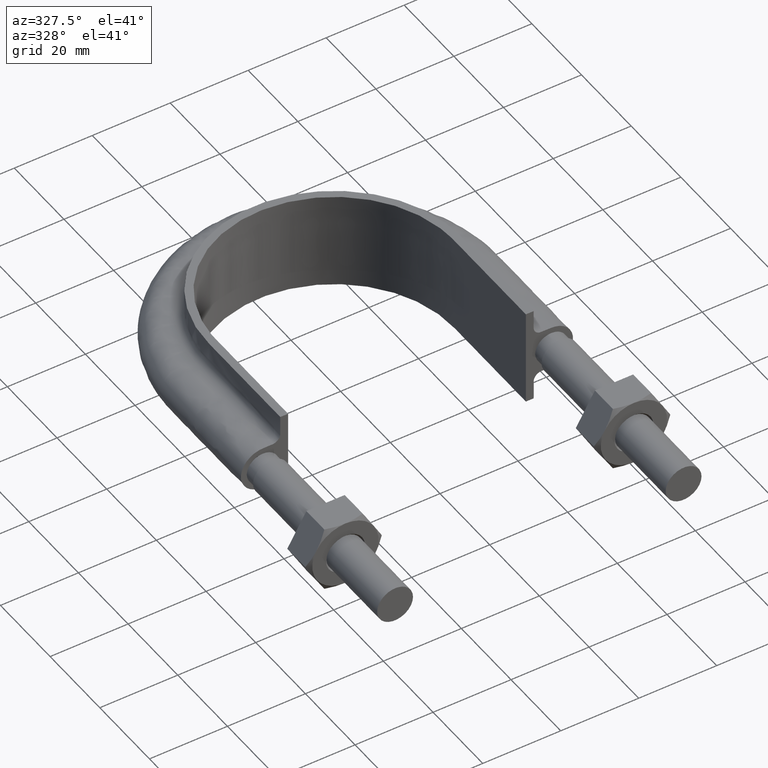
[diagram: clean part render]
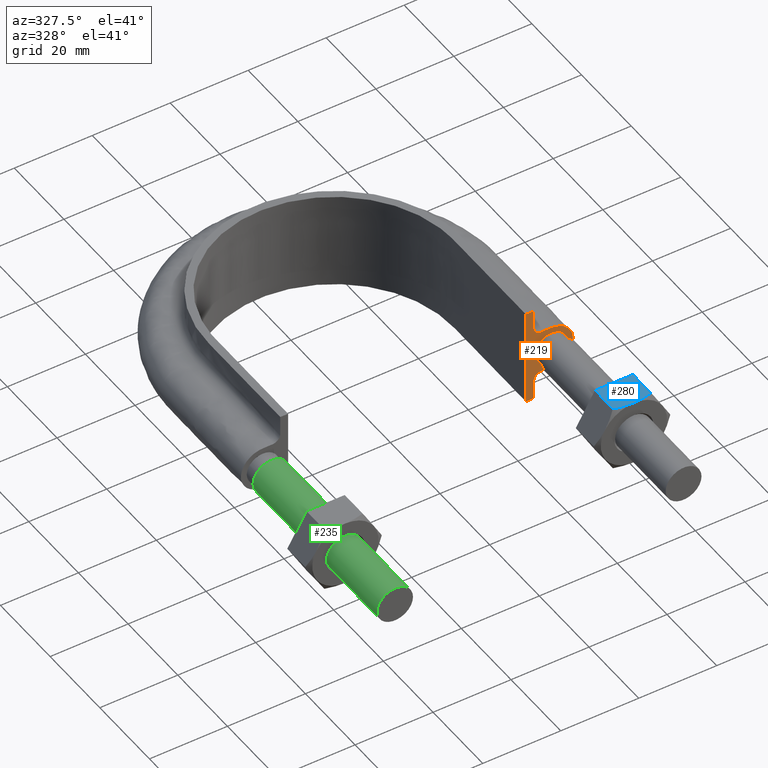
[diagram: same view with three faces highlighted in distinct colors, each labeled with its STEP entity id]
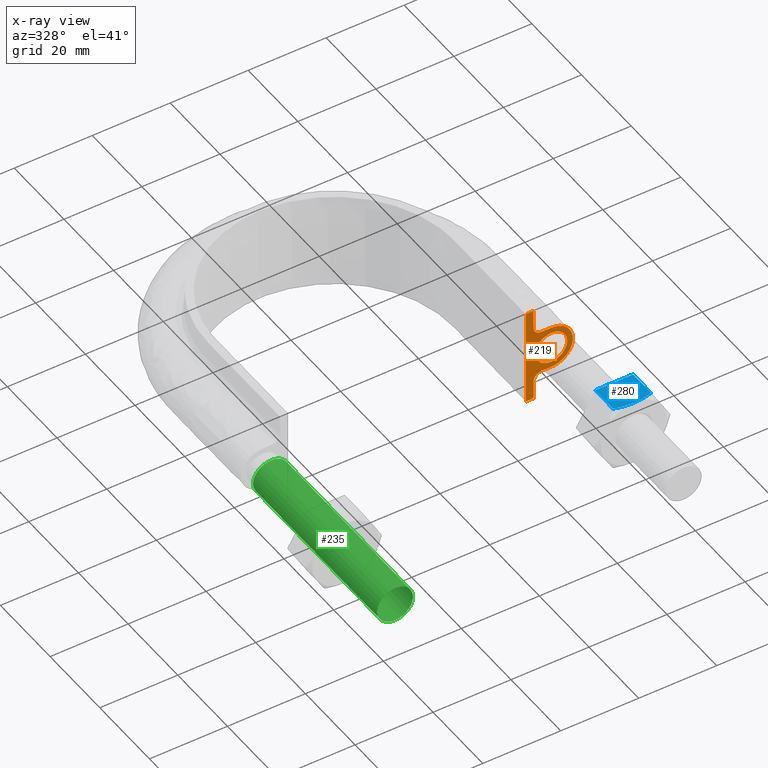
[diagram: x-ray of the same camera — body ghosted, the three highlighted faces saturated]
A machine part, auxiliary view with three faces highlighted in distinct colors.
The next image is the same camera in x-ray (body ghosted, the three faces saturated) — at least one of them is partly hidden behind the body in this view.
Their STEP definitions:

[orange] entity #219 — the highlighted planar face has unit normal (-0, -1, 0).
#219 = ADVANCED_FACE( '', ( #296, #297 ), #298, .T. );
#296 = FACE_BOUND( '', #468, .T. );
#297 = FACE_OUTER_BOUND( '', #469, .T. );
#298 = PLANE( '', #470 );
#468 = EDGE_LOOP( '', ( #1465 ) );
#469 = EDGE_LOOP( '', ( #1466, #1467, #1468, #1469 ) );
#470 = AXIS2_PLACEMENT_3D( '', #1470, #1471, #1472 );
#1465 = ORIENTED_EDGE( '', *, *, #2003, .F. );
#1466 = ORIENTED_EDGE( '', *, *, #2004, .F. );
#1467 = ORIENTED_EDGE( '', *, *, #2005, .T. );
#1468 = ORIENTED_EDGE( '', *, *, #2006, .T. );
#1469 = ORIENTED_EDGE( '', *, *, #2007, .T. );
#1470 = CARTESIAN_POINT( '', ( -45.0000000000000, 53.3000000000001, -12.5000000000000 ) );
#1471 = DIRECTION( '', ( -1.22460635382238E-016, -1.00000000000000, 0.000000000000000 ) );
#1472 = DIRECTION( '', ( -1.00000000000000, 1.22460635382238E-016, 0.000000000000000 ) );
#2003 = EDGE_CURVE( '', #2155, #2155, #2156, .T. );
#2004 = EDGE_CURVE( '', #2157, #2158, #2159, .T. );
#2005 = EDGE_CURVE( '', #2157, #2160, #2161, .T. );
#2006 = EDGE_CURVE( '', #2160, #2162, #2163, .T. );
#2007 = EDGE_CURVE( '', #2162, #2158, #2164, .T. );
#2155 = VERTEX_POINT( '', #2405 );
#2156 = B_SPLINE_CURVE_WITH_KNOTS( '', 3, ( #2406, #2407, #2408, #2409, #2410, #2411, #2412, #2413, #2414, #2415 ), .UNSPECIFIED., .T., .F., ( 4, 1, 1, 1, 1, 1, 1, 4 ), ( 0.000000000000000, 0.00365634574703304, 0.00731269149406608, 0.0109690372410991, 0.0146253829881322, 0.0182817287351652, 0.0219380744821982, 0.0255944202292313 ), .UNSPECIFIED. );
#2157 = VERTEX_POINT( '', #2416 );
#2158 = VERTEX_POINT( '', #2417 );
#2159 = LINE( '', #2418, #2419 );
#2160 = VERTEX_POINT( '', #2420 );
#2161 = LINE( '', #2421, #2422 );
#2162 = VERTEX_POINT( '', #2423 );
#2163 = LINE( '', #2424, #2425 );
#2164 = B_SPLINE_CURVE_WITH_KNOTS( '', 3, ( #2426, #2427, #2428, #2429, #2430, #2431, #2432, #2433, #2434, #2435, #2436, #2437, #2438, #2439, #2440, #2441, #2442, #2443, #2444, #2445, #2446, #2447, #2448, #2449, #2450, #2451, #2452, #2453, #2454, #2455, #2456 ), .UNSPECIFIED., .F., .F., ( 4, 3, 1, 1, 1, 3, 3, 1, 1, 1, 3, 3, 1, 1, 1, 3, 4 ), ( 0.000000000000000, 0.00240485792065913, 0.00480971584131826, 0.00721457376197739, 0.00961943168263653, 0.0120242896032957, 0.0144291475239548, 0.0168340054446139, 0.0192388633652731, 0.0216437212859322, 0.0240485792065913, 0.0264534371272505, 0.0288582950479096, 0.0312631529685687, 0.0336680108892278, 0.0360728688098870, 0.0384777267305461 ), .UNSPECIFIED. );
#2405 = CARTESIAN_POINT( '', ( 32.9000000000000, 53.3000000000001, 4.33680868994202E-016 ) );
#2406 = CARTESIAN_POINT( '', ( 32.9000000000000, 53.3000000000001, 3.25260651745651E-016 ) );
#2407 = CARTESIAN_POINT( '', ( 32.9000000000000, 53.3000000000001, -1.22184926194408 ) );
#2408 = CARTESIAN_POINT( '', ( 34.0768231851220, 53.3000000000001, -3.66554778583225 ) );
#2409 = CARTESIAN_POINT( '', ( 38.0432697263483, 53.3000000000001, -4.57086332538454 ) );
#2410 = CARTESIAN_POINT( '', ( 41.2241128848103, 53.3000000000001, -2.03422555230246 ) );
#2411 = CARTESIAN_POINT( '', ( 41.2241128848103, 53.3000000000001, 2.03422555230246 ) );
#2412 = CARTESIAN_POINT( '', ( 38.0432697263483, 53.3000000000001, 4.57086332538454 ) );
#2413 = CARTESIAN_POINT( '', ( 34.0768231851220, 53.3000000000001, 3.66554778583225 ) );
#2414 = CARTESIAN_POINT( '', ( 32.9000000000000, 53.3000000000001, 1.22184926194408 ) );
#2415 = CARTESIAN_POINT( '', ( 32.9000000000000, 53.3000000000001, 3.25260651745651E-016 ) );
#2416 = CARTESIAN_POINT( '', ( 30.5000000000000, 53.3000000000001, 12.5000000000000 ) );
#2417 = CARTESIAN_POINT( '', ( 32.5000000000000, 53.3000000000001, 12.5000000000000 ) );
#2418 = CARTESIAN_POINT( '', ( -45.0000000000000, 53.3000000000001, 12.5000000000000 ) );
#2419 = VECTOR( '', #3074, 1000.00000000000 );
#2420 = CARTESIAN_POINT( '', ( 30.5000000000000, 53.3000000000001, -12.5000000000000 ) );
#2421 = CARTESIAN_POINT( '', ( 30.5000000000000, 53.3000000000001, 12.5000100000910 ) );
#2422 = VECTOR( '', #3075, 1000.00000000000 );
#2423 = CARTESIAN_POINT( '', ( 32.5000000000000, 53.3000000000000, -12.5000000000000 ) );
#2424 = CARTESIAN_POINT( '', ( -45.0000000000000, 53.3000000000001, -12.5000000000000 ) );
#2425 = VECTOR( '', #3076, 1000.00000000000 );
#2426 = CARTESIAN_POINT( '', ( 32.5000000000000, 53.3000000000000, -12.5000000000000 ) );
#2427 = CARTESIAN_POINT( '', ( 32.5000000000000, 53.3000000000000, -10.8666666666667 ) );
#2428 = CARTESIAN_POINT( '', ( 32.5000000000000, 53.3000000000000, -9.23333333333333 ) );
#2429 = CARTESIAN_POINT( '', ( 32.5000000000000, 53.3000000000000, -7.60000000000000 ) );
#2430 = CARTESIAN_POINT( '', ( 32.5000000000000, 53.3000000000000, -7.33823584172334 ) );
#2431 = CARTESIAN_POINT( '', ( 32.6041362568359, 53.3000000000000, -6.81470752517001 ) );
#2432 = CARTESIAN_POINT( '', ( 33.0489687109389, 53.3000000000000, -6.14896871093888 ) );
#2433 = CARTESIAN_POINT( '', ( 33.7147075251700, 53.3000000000000, -5.70413625683591 ) );
#2434 = CARTESIAN_POINT( '', ( 34.2382358417234, 53.3000000000000, -5.60000000000000 ) );
#2435 = CARTESIAN_POINT( '', ( 34.5000000000000, 53.3000000000000, -5.60000000000000 ) );
#2436 = CARTESIAN_POINT( '', ( 35.3333333333334, 53.3000000000000, -5.60000000000000 ) );
#2437 = CARTESIAN_POINT( '', ( 36.1666666666667, 53.3000000000000, -5.60000000000000 ) );
#2438 = CARTESIAN_POINT( '', ( 37.0000000000000, 53.3000000000000, -5.60000000000000 ) );
#2439 = CARTESIAN_POINT( '', ( 38.4627416997970, 53.3000000000000, -5.60000000000000 ) );
#2440 = CARTESIAN_POINT( '', ( 41.3882250993909, 53.3000000000000, -4.38822509939086 ) );
#2441 = CARTESIAN_POINT( '', ( 43.2058874503046, 53.3000000000000, -1.07693261045861E-015 ) );
#2442 = CARTESIAN_POINT( '', ( 41.3882250993909, 53.3000000000000, 4.38822509939085 ) );
#2443 = CARTESIAN_POINT( '', ( 38.4627416997970, 53.3000000000000, 5.60000000000000 ) );
#2444 = CARTESIAN_POINT( '', ( 37.0000000000000, 53.3000000000000, 5.60000000000000 ) );
#2445 = CARTESIAN_POINT( '', ( 36.1666666666667, 53.3000000000000, 5.60000000000000 ) );
#2446 = CARTESIAN_POINT( '', ( 35.3333333333334, 53.3000000000000, 5.60000000000000 ) );
#2447 = CARTESIAN_POINT( '', ( 34.5000000000000, 53.3000000000000, 5.59999999999998 ) );
#2448 = CARTESIAN_POINT( '', ( 34.2382358417234, 53.3000000000000, 5.59999999999998 ) );
#2449 = CARTESIAN_POINT( '', ( 33.7147075251700, 53.3000000000000, 5.70413625683589 ) );
#2450 = CARTESIAN_POINT( '', ( 33.0489687109389, 53.3000000000000, 6.14896871093886 ) );
#2451 = CARTESIAN_POINT( '', ( 32.6041362568359, 53.3000000000000, 6.81470752516999 ) );
#2452 = CARTESIAN_POINT( '', ( 32.5000000000000, 53.3000000000000, 7.33823584172332 ) );
#2453 = CARTESIAN_POINT( '', ( 32.5000000000000, 53.3000000000000, 7.59999999999998 ) );
#2454 = CARTESIAN_POINT( '', ( 32.5000000000000, 53.3000000000000, 9.23333333333332 ) );
#2455 = CARTESIAN_POINT( '', ( 32.5000000000000, 53.3000000000000, 10.8666666666667 ) );
#2456 = CARTESIAN_POINT( '', ( 32.5000000000000, 53.3000000000000, 12.5000000000000 ) );
#3074 = DIRECTION( '', ( 1.00000000000000, -1.22460635382238E-016, 0.000000000000000 ) );
#3075 = DIRECTION( '', ( 0.000000000000000, 0.000000000000000, -1.00000000000000 ) );
#3076 = DIRECTION( '', ( 1.00000000000000, -1.22460635382238E-016, 0.000000000000000 ) );

[blue] entity #280 — the highlighted planar face has unit normal (-0, -0, -1).
#280 = ADVANCED_FACE( '', ( #435 ), #436, .F. );
#435 = FACE_OUTER_BOUND( '', #1432, .T. );
#436 = PLANE( '', #1433 );
#1432 = EDGE_LOOP( '', ( #1900, #1901, #1902, #1903, #1904 ) );
#1433 = AXIS2_PLACEMENT_3D( '', #1905, #1906, #1907 );
#1900 = ORIENTED_EDGE( '', *, *, #2134, .F. );
#1901 = ORIENTED_EDGE( '', *, *, #2139, .F. );
#1902 = ORIENTED_EDGE( '', *, *, #2133, .F. );
#1903 = ORIENTED_EDGE( '', *, *, #2130, .F. );
#1904 = ORIENTED_EDGE( '', *, *, #2140, .F. );
#1905 = CARTESIAN_POINT( '', ( 32.0925227118882, 28.0000000000000, 8.49999999999999 ) );
#1906 = DIRECTION( '', ( -5.73971850987446E-048, -6.12303176911189E-017, -1.00000000000000 ) );
#1907 = DIRECTION( '', ( -1.00000000000000, 2.44921270764476E-016, -1.49966072182214E-032 ) );
#2130 = EDGE_CURVE( '', #2368, #2350, #2370, .T. );
#2133 = EDGE_CURVE( '', #2350, #2371, #2375, .F. );
#2134 = EDGE_CURVE( '', #2328, #2376, #2377, .T. );
#2139 = EDGE_CURVE( '', #2371, #2328, #2383, .T. );
#2140 = EDGE_CURVE( '', #2376, #2368, #2384, .T. );
#2328 = VERTEX_POINT( '', #2923 );
#2350 = VERTEX_POINT( '', #2960 );
#2368 = VERTEX_POINT( '', #2982 );
#2370 = LINE( '', #2984, #2985 );
#2371 = VERTEX_POINT( '', #2986 );
#2375 = LINE( '', #2991, #2992 );
#2376 = VERTEX_POINT( '', #2993 );
#2377 = B_SPLINE_CURVE_WITH_KNOTS( '', 3, ( #2994, #2995, #2996, #2997, #2998, #2999, #3000, #3001 ), .UNSPECIFIED., .F., .F., ( 4, 2, 2, 4 ), ( 0.00493529902949373, 0.00616408349151779, 0.00739286795354186, 0.00985043687758998 ), .UNSPECIFIED. );
#2383 = B_SPLINE_CURVE_WITH_KNOTS( '', 3, ( #3018, #3019, #3020, #3021, #3022, #3023 ), .UNSPECIFIED., .F., .F., ( 4, 2, 4 ), ( 7.17194508352321E-007, 0.00246800811200104, 0.00493529902949373 ), .UNSPECIFIED. );
#2384 = LINE( '', #3024, #3025 );
#2923 = CARTESIAN_POINT( '', ( 37.0000000000000, 20.0000000000000, 8.50000000000000 ) );
#2960 = CARTESIAN_POINT( '', ( 41.8774993593029, 28.0000000000000, 8.49999999999999 ) );
#2982 = CARTESIAN_POINT( '', ( 32.1225006406971, 28.0000000000000, 8.50000000000000 ) );
#2984 = CARTESIAN_POINT( '', ( 32.1000000000000, 28.0000000000000, 8.49999999999999 ) );
#2985 = VECTOR( '', #3279, 1000.00000000000 );
#2986 = CARTESIAN_POINT( '', ( 41.8774993593029, 20.7505553499465, 8.50000000000000 ) );
#2991 = CARTESIAN_POINT( '', ( 41.8774993593029, 28.0000000000000, 8.50000000000000 ) );
#2992 = VECTOR( '', #3284, 1000.00000000000 );
#2993 = CARTESIAN_POINT( '', ( 32.1225006406971, 20.7505553499465, 8.50000000000000 ) );
#2994 = CARTESIAN_POINT( '', ( 37.0000000000000, 20.0000000000000, 8.49999999999999 ) );
#2995 = CARTESIAN_POINT( '', ( 36.5862903722491, 20.0000000000000, 8.50000000000000 ) );
#2996 = CARTESIAN_POINT( '', ( 36.1705131783975, 20.0177112141220, 8.50000000000000 ) );
#2997 = CARTESIAN_POINT( '', ( 35.3480009983425, 20.0863020976799, 8.50000000000000 ) );
#2998 = CARTESIAN_POINT( '', ( 34.9394788820032, 20.1371114863339, 8.49999999999999 ) );
#2999 = CARTESIAN_POINT( '', ( 33.7211323152193, 20.3331491064655, 8.49999999999999 ) );
#3000 = CARTESIAN_POINT( '', ( 32.9185008687927, 20.5218250443850, 8.49999999999999 ) );
#3001 = CARTESIAN_POINT( '', ( 32.1225006406971, 20.7505553499465, 8.49999999999999 ) );
#3018 = CARTESIAN_POINT( '', ( 41.8774993593029, 20.7505553499465, 8.49999999999999 ) );
#3019 = CARTESIAN_POINT( '', ( 41.0793958257588, 20.5212206605155, 8.50000000000000 ) );
#3020 = CARTESIAN_POINT( '', ( 40.2755276393733, 20.3324529479805, 8.50000000000000 ) );
#3021 = CARTESIAN_POINT( '', ( 38.6512367166361, 20.0714150925759, 8.49999999999999 ) );
#3022 = CARTESIAN_POINT( '', ( 37.8306924758373, 20.0000000000000, 8.49999999999999 ) );
#3023 = CARTESIAN_POINT( '', ( 37.0000000000000, 20.0000000000000, 8.49999999999999 ) );
#3024 = CARTESIAN_POINT( '', ( 32.1225006406971, 28.0000000000000, 8.50000000000000 ) );
#3025 = VECTOR( '', #3289, 1000.00000000000 );
#3279 = DIRECTION( '', ( 1.00000000000000, -2.44921270764476E-016, 0.000000000000000 ) );
#3284 = DIRECTION( '', ( 2.44921270764476E-016, 1.00000000000000, -6.12303176911189E-017 ) );
#3289 = DIRECTION( '', ( 2.44921270764476E-016, 1.00000000000000, -6.12303176911189E-017 ) );

[green] entity #235 — the highlighted cylindrical surface (bore or boss wall) has radius 4.6 mm, axis along (0, 1, -0).
#235 = ADVANCED_FACE( '', ( #336, #337 ), #338, .T. );
#336 = FACE_OUTER_BOUND( '', #1333, .T. );
#337 = FACE_OUTER_BOUND( '', #1334, .T. );
#338 = CYLINDRICAL_SURFACE( '', #1335, 4.60000000000000 );
#1333 = EDGE_LOOP( '', ( #1588 ) );
#1334 = EDGE_LOOP( '', ( #1589 ) );
#1335 = AXIS2_PLACEMENT_3D( '', #1590, #1591, #1592 );
#1588 = ORIENTED_EDGE( '', *, *, #2049, .T. );
#1589 = ORIENTED_EDGE( '', *, *, #2050, .F. );
#1590 = CARTESIAN_POINT( '', ( -37.0000000000000, 50.0000000000000, -3.09825407517062E-015 ) );
#1591 = DIRECTION( '', ( 2.44921270764475E-016, 1.00000000000000, -6.12303176911189E-017 ) );
#1592 = DIRECTION( '', ( 1.00000000000000, -2.44921270764475E-016, 0.000000000000000 ) );
#2049 = EDGE_CURVE( '', #2229, #2229, #2230, .T. );
#2050 = EDGE_CURVE( '', #2231, #2231, #2232, .T. );
#2229 = VERTEX_POINT( '', #2726 );
#2230 = CIRCLE( '', #2727, 4.60000000000000 );
#2231 = VERTEX_POINT( '', #2728 );
#2232 = CIRCLE( '', #2729, 4.60000000000000 );
#2726 = CARTESIAN_POINT( '', ( -32.4000000000000, 50.0000000000000, -3.09825407517062E-015 ) );
#2727 = AXIS2_PLACEMENT_3D( '', #3134, #3135, #3136 );
#2728 = CARTESIAN_POINT( '', ( -32.4000000000000, 7.93544917276900E-015, -3.67381906146716E-017 ) );
#2729 = AXIS2_PLACEMENT_3D( '', #3137, #3138, #3139 );
#3134 = CARTESIAN_POINT( '', ( -37.0000000000000, 50.0000000000000, -3.09825407517062E-015 ) );
#3135 = DIRECTION( '', ( -2.44921270764475E-016, -1.00000000000000, 6.12303176911189E-017 ) );
#3136 = DIRECTION( '', ( 1.00000000000000, -2.44921270764475E-016, 0.000000000000000 ) );
#3137 = CARTESIAN_POINT( '', ( -37.0000000000000, 9.06208701828559E-015, -3.67381906146716E-017 ) );
#3138 = DIRECTION( '', ( -2.44921270764475E-016, -1.00000000000000, 6.12303176911189E-017 ) );
#3139 = DIRECTION( '', ( 1.00000000000000, -2.44921270764475E-016, 0.000000000000000 ) );